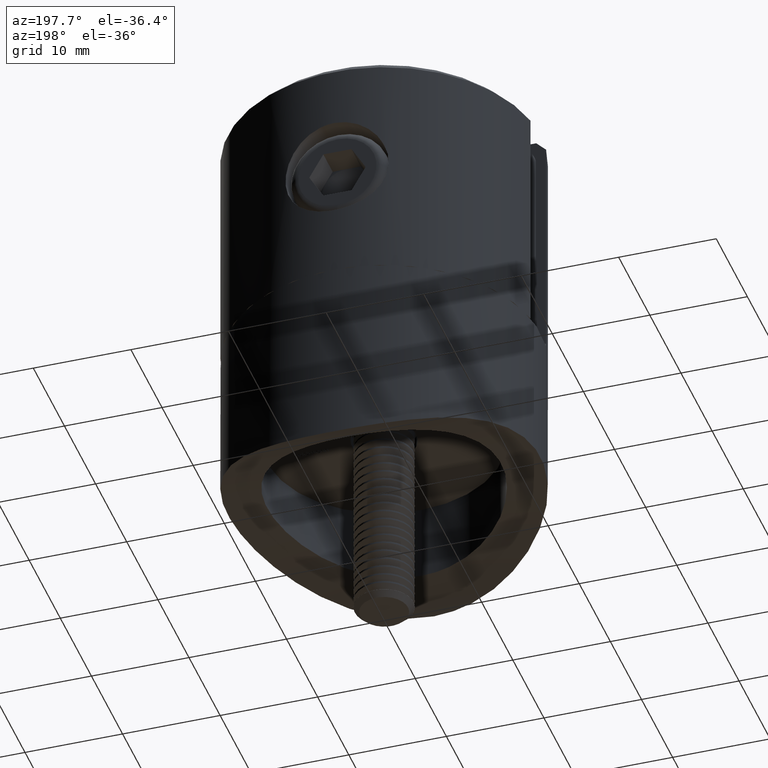
[diagram: clean part render]
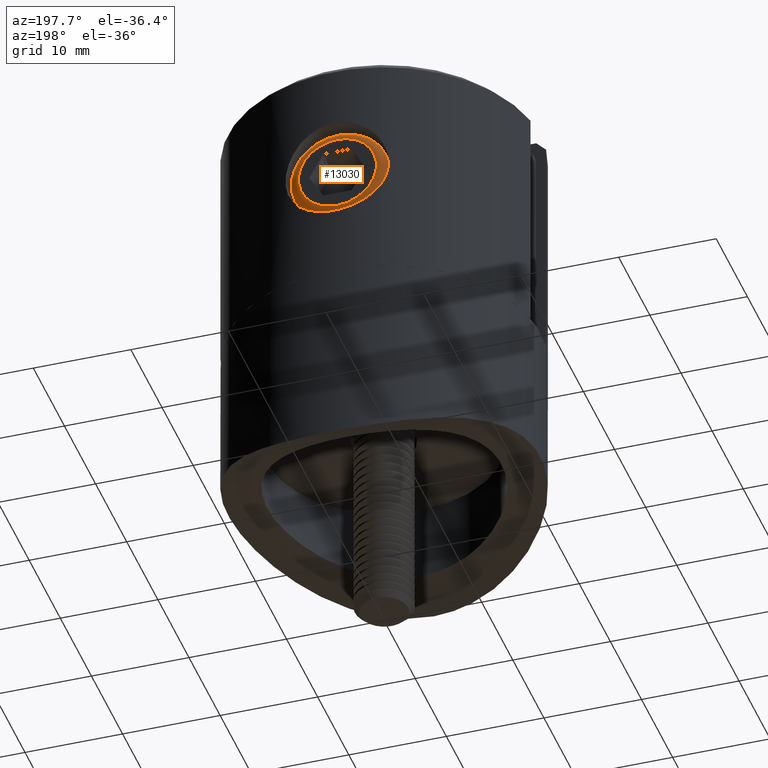
[diagram: same view with one face highlighted and labeled with its STEP entity id]
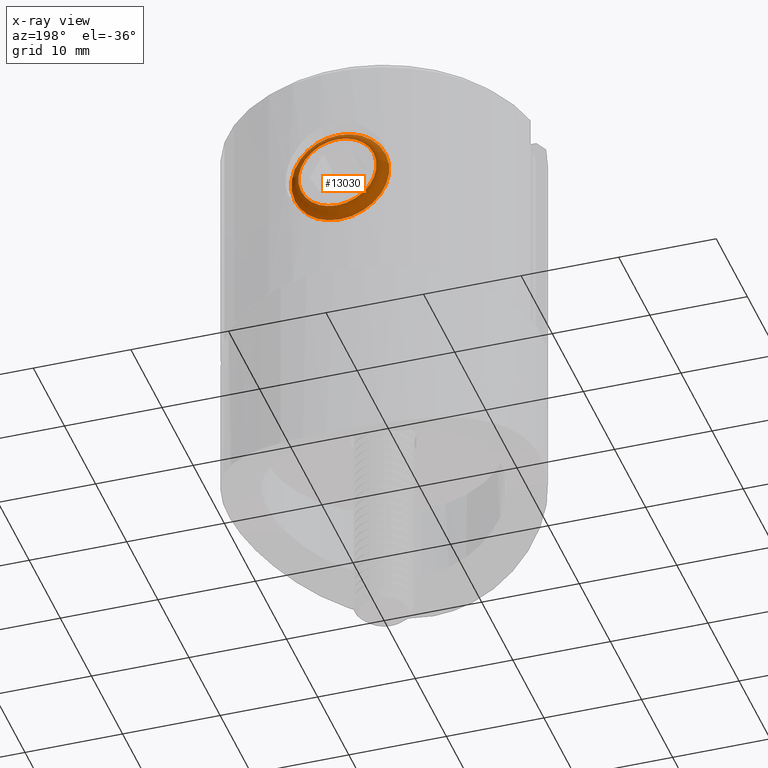
[diagram: x-ray of the same camera — body ghosted, the highlighted face saturated]
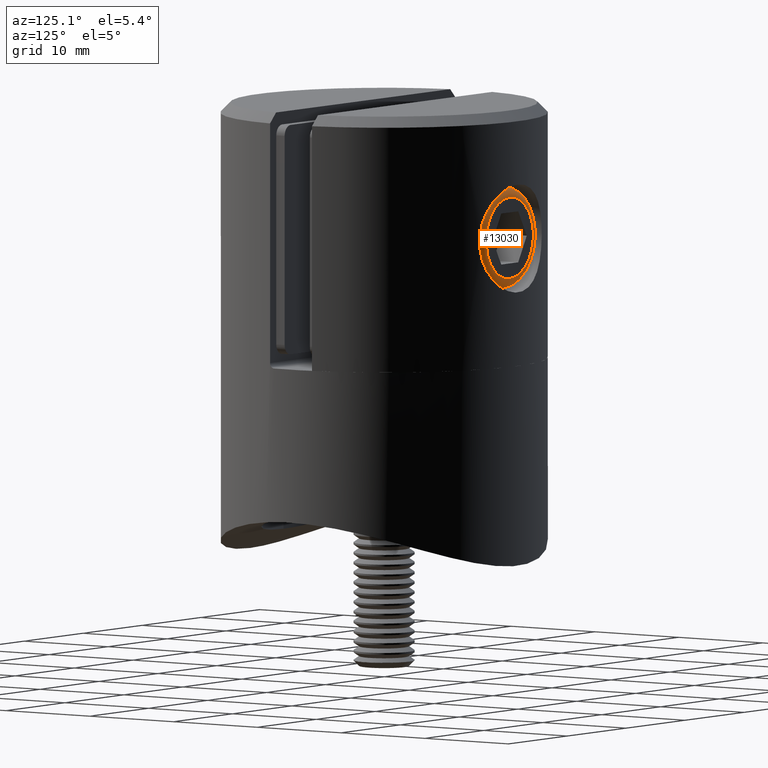
[diagram: same view with one face highlighted and labeled with its STEP entity id]
A machine part, auxiliary view. The second image highlights one B-rep face of the part: STEP entity #13030.
The next image is the same camera in x-ray: the body ghosted, the highlighted face saturated — about 0% of this face is hidden behind the body in this view.
A second angle (auxiliary view) of the same face is appended — the face is thin or edge-on in the first view.
In plain terms, the highlighted toroidal blend (fillet) surface has major radius 4 mm and minor (blend) radius 1 mm.
Its self-contained STEP definition (entity closure, byte-faithful):
#2789 = EDGE_CURVE ( 'NONE', #19821, #19821, #15367, .T. ) ;
#3142 = DIRECTION ( 'NONE',  ( 0.000000000000000000, 0.000000000000000000, 1.000000000000000000 ) ) ;
#5128 = FACE_OUTER_BOUND ( 'NONE', #17818, .T. ) ;
#6081 = DIRECTION ( 'NONE',  ( 0.000000000000000000, 0.000000000000000000, 1.000000000000000000 ) ) ;
#7782 = DIRECTION ( 'NONE',  ( -0.000000000000000000, -1.000000000000000000, -0.000000000000000000 ) ) ;
#7950 = AXIS2_PLACEMENT_3D ( 'NONE', #14643, #19327, #3142 ) ;
#8738 = ORIENTED_EDGE ( 'NONE', *, *, #2789, .F. ) ;
#9150 = VERTEX_POINT ( 'NONE', #17855 ) ;
#10198 = EDGE_CURVE ( 'NONE', #9150, #9150, #13590, .T. ) ;
#10230 = FACE_OUTER_BOUND ( 'NONE', #16968, .T. ) ;
#11845 = CARTESIAN_POINT ( 'NONE',  ( 0.000000000000000000, 6.000000000000000000, 0.000000000000000000 ) ) ;
#13030 = ADVANCED_FACE ( 'NONE', ( #10230, #5128 ), #19620, .T. ) ;
#13590 = CIRCLE ( 'NONE', #19209, 4.000000000000000000 ) ;
#14643 = CARTESIAN_POINT ( 'NONE',  ( 0.000000000000000000, 5.000000000000000000, 0.000000000000000000 ) ) ;
#14937 = ORIENTED_EDGE ( 'NONE', *, *, #10198, .F. ) ;
#15367 = CIRCLE ( 'NONE', #17146, 5.000000000000000000 ) ;
#16436 = CARTESIAN_POINT ( 'NONE',  ( 0.000000000000000000, 5.000000000000000000, 5.000000000000000000 ) ) ;
#16611 = DIRECTION ( 'NONE',  ( 0.000000000000000000, 0.000000000000000000, 1.000000000000000000 ) ) ;
#16968 = EDGE_LOOP ( 'NONE', ( #8738 ) ) ;
#17146 = AXIS2_PLACEMENT_3D ( 'NONE', #17547, #7782, #6081 ) ;
#17547 = CARTESIAN_POINT ( 'NONE',  ( 0.000000000000000000, 5.000000000000000000, 0.000000000000000000 ) ) ;
#17818 = EDGE_LOOP ( 'NONE', ( #14937 ) ) ;
#17855 = CARTESIAN_POINT ( 'NONE',  ( 0.000000000000000000, 6.000000000000000000, 4.000000000000000000 ) ) ;
#19209 = AXIS2_PLACEMENT_3D ( 'NONE', #11845, #19711, #16611 ) ;
#19327 = DIRECTION ( 'NONE',  ( 0.000000000000000000, 1.000000000000000000, 0.000000000000000000 ) ) ;
#19620 = TOROIDAL_SURFACE ( 'NONE', #7950, 4.000000000000000000, 1.000000000000000000 ) ;
#19711 = DIRECTION ( 'NONE',  ( 0.000000000000000000, 1.000000000000000000, 0.000000000000000000 ) ) ;
#19821 = VERTEX_POINT ( 'NONE', #16436 ) ;